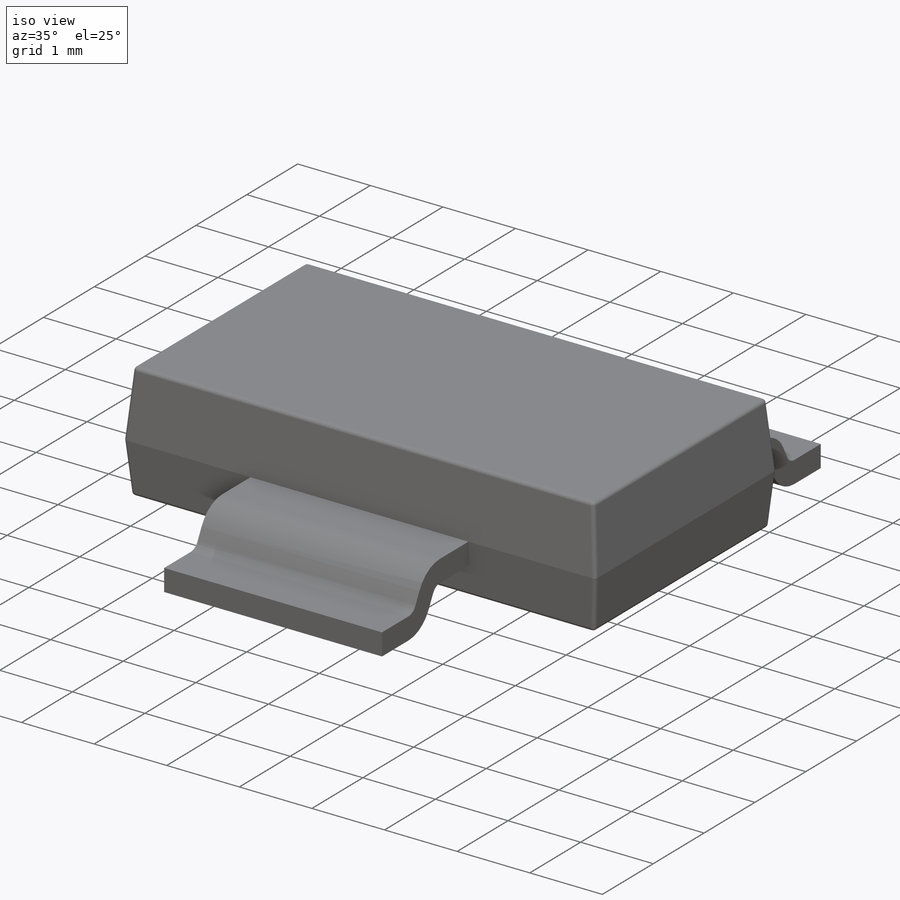
[diagram: iso view]
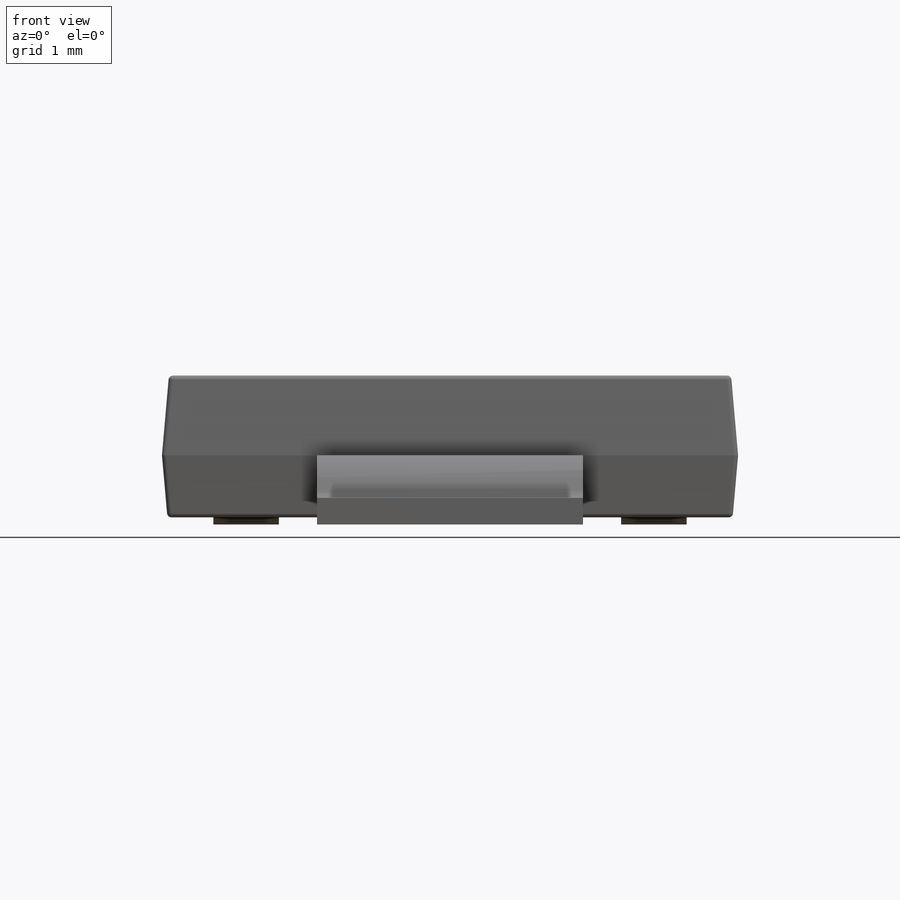
[diagram: front view]
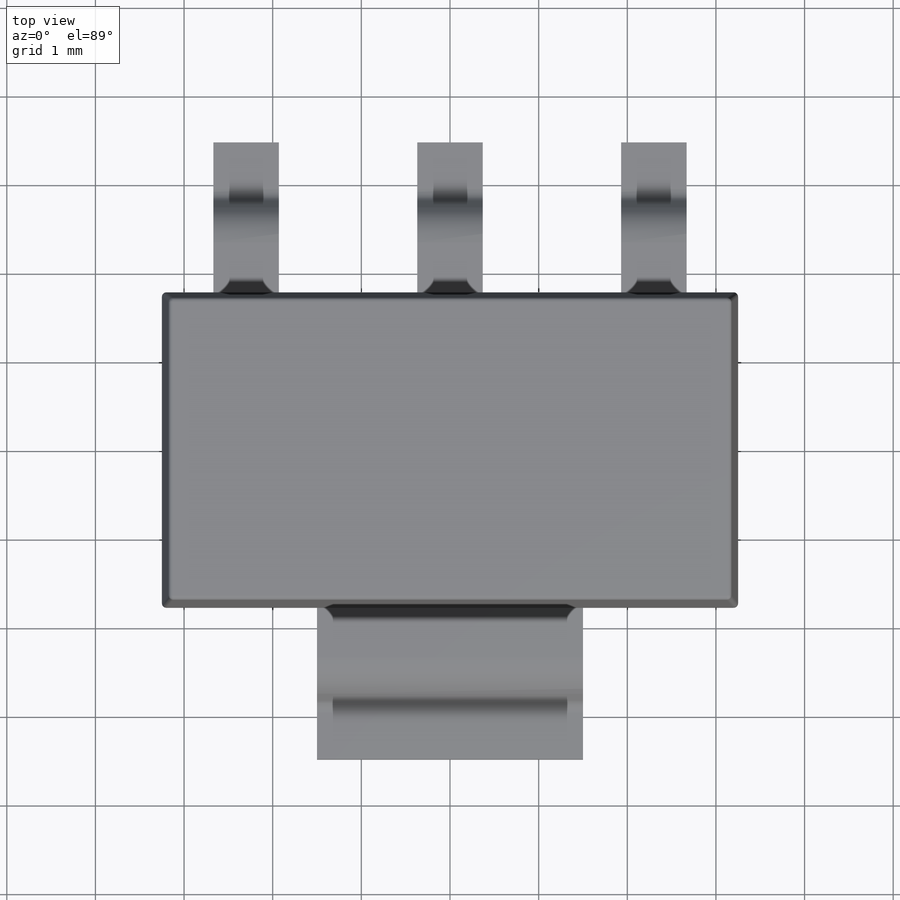
[diagram: top view]
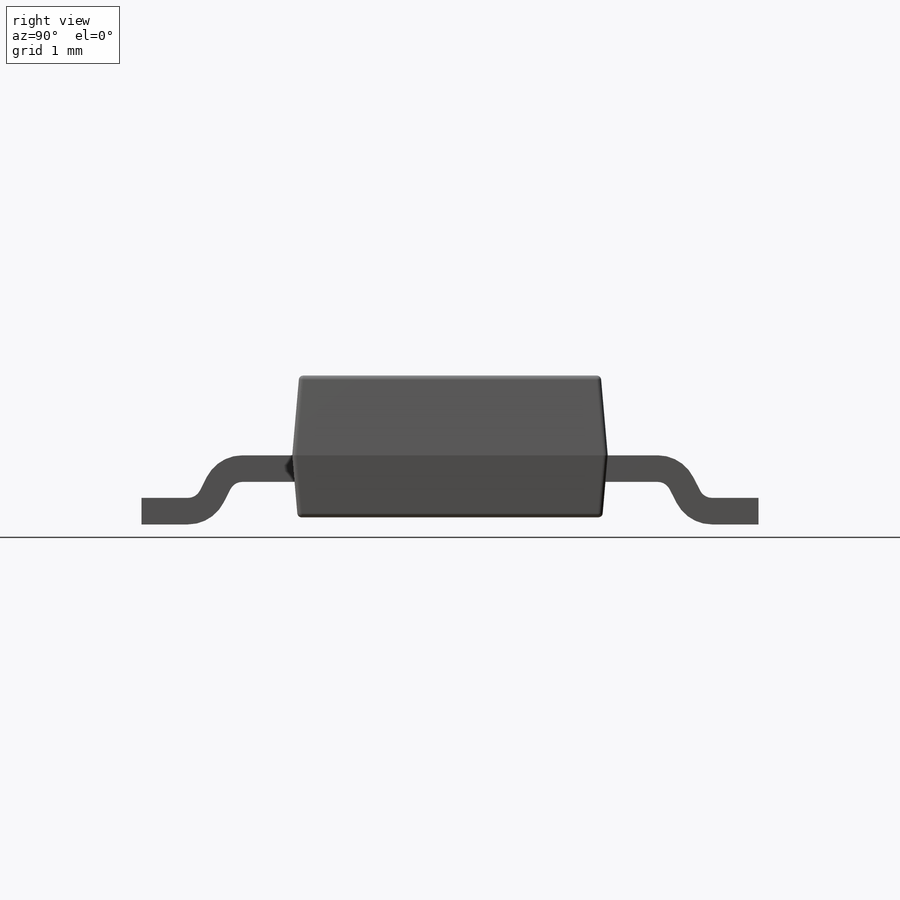
[diagram: right view]
SOLIDWORKS PART (.sldprt)
format: sldprt  version: not decoded by parser v0  size: 318,976 bytes
history: native  units: mm
features: sketch x4, extrude x3, fillet x3, material x1, pattern_linear x1, plane x1 (+12 scaffold rows collapsed)
feature tree (25):
  scaffold x12  (default folders/planes/origin — collapsed)
  material  "Material <not specified>"
  sketch  "Sketch1"  dims[D1=6.5mm D2=3.56mm D3=3.25mm D4=1.78mm]
  extrude  "Extrude1"  Depth=0.9mm
  sketch  "Sketch2"  dims[c1.D1=0.3mm c1.D2=0.3mm c1.D3=1.7mm c1.D4=0.08mm c1.D5=0.8mm c1.D6=0.3mm c1.D7=0.8mm c2.D7=63.0deg]
  extrude  "Extrude2"  Depth=0.37mm
  pattern_linear  "LPattern1"  Count1=2 Count2=2 Spacing1=2.3mm Spacing2=2.3mm
  extrude  "Extrude3"  [1 undecoded]
  sketch  "Sketch2<3>"  dims[D1=1.5mm D2=1.5mm]
  fillet  "Fillet2"  Radius=0.45mm
  fillet  "Fillet1"  Radius=0.15mm
  fillet  "Fillet3"  Radius=0.05mm
  plane  "Board Plane"  Offset=0.78mm
  sketch  "Component_Outline"
decode coverage: 9 of 11 modeling features carry decoded parameters
note: 1 parameter value undecoded
note: suppression state not decoded; provenance and decode notes live in map.json
